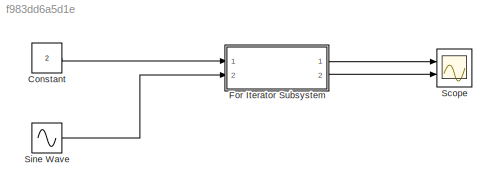
MODEL slx_f983dd6a5d1e
KIND model
CONFIG AbsTol = auto
CONFIG FixedStep = auto
CONFIG MaxStep = auto
CONFIG MinStep = auto
CONFIG RelTol = 1e-3
CONFIG SampleTimeConstraint = Unconstrained
CONFIG Solver = VariableStepAuto
CONFIG SolverMode = Auto
CONFIG SolverName = VariableStepAuto
CONFIG StartFcn = open_scope
CONFIG StartTime = 0.0
CONFIG StopTime = 10.0
BLOCK [Constant] Constant
  Value = 2
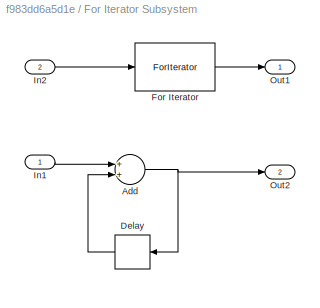
BLOCK [SubSystem] For Iterator Subsystem
  Ports = [2, 2]
  RequestExecContextInheritance = off
  TreatAsAtomicUnit = on
  Variant = off
BLOCK [Sum] For Iterator Subsystem/Add
  InputSameDT = off
  OutDataTypeStr = Inherit: Inherit via internal rule
  Ports = [2, 1]
  SaturateOnIntegerOverflow = off
BLOCK [Delay] For Iterator Subsystem/Delay
  DelayLength = 1
  InitialCondition = 0
  InputPortMap = u0
  Ports = [1, 1]
BLOCK [ForIterator] For Iterator Subsystem/For Iterator
  IterationSource = external
  IterationVariableDataType = double
  Ports = [1, 1]
BLOCK [Inport] For Iterator Subsystem/In1
  IconDisplay = Port number
BLOCK [Inport] For Iterator Subsystem/In2
  IconDisplay = Port number
  Port = 2
BLOCK [Outport] For Iterator Subsystem/Out1
  IconDisplay = Port number
BLOCK [Outport] For Iterator Subsystem/Out2
  IconDisplay = Port number
  Port = 2
BLOCK [Scope] Scope
  NumInputPorts = 2
  Ports = [2]
  ScopeSpecificationString = Simulink.scopes.TimeScopeBlockCfg('CurrentConfiguration', extmgr.ConfigurationSet(extmgr.Configuration('Core','General UI',true),extmgr.Configuration('Core','Source UI',true),extmgr.Configuration('Sources','WiredSimulink',true),extmgr.Configuration('Visuals','Time Domain',true,'SerializedDisplays',{struct('MinYLimReal','-1.25','MaxYLimReal','11.25','YLabelReal','','MinYLimMag','0.00000','MaxYLimMa...<+1929ch>
BLOCK [Sin] Sine Wave
  Amplitude = 11
  Ports = [0, 1]
  SampleTime = 0
LINE Constant:1 -> For Iterator Subsystem:1
NET For Iterator Subsystem/Add:1 -> For Iterator Subsystem/Delay:1, For Iterator Subsystem/Out2:1
LINE For Iterator Subsystem/Delay:1 -> For Iterator Subsystem/Add:2
LINE For Iterator Subsystem/For Iterator:1 -> For Iterator Subsystem/Out1:1
LINE For Iterator Subsystem/In1:1 -> For Iterator Subsystem/Add:1
LINE For Iterator Subsystem/In2:1 -> For Iterator Subsystem/For Iterator:1
LINE For Iterator Subsystem:1 -> Scope:1
LINE For Iterator Subsystem:2 -> Scope:2
LINE Sine Wave:1 -> For Iterator Subsystem:2
note: NET lines group one-source signal fan-out (src -> all destinations, sorted); 1:1 wires keep LINE
